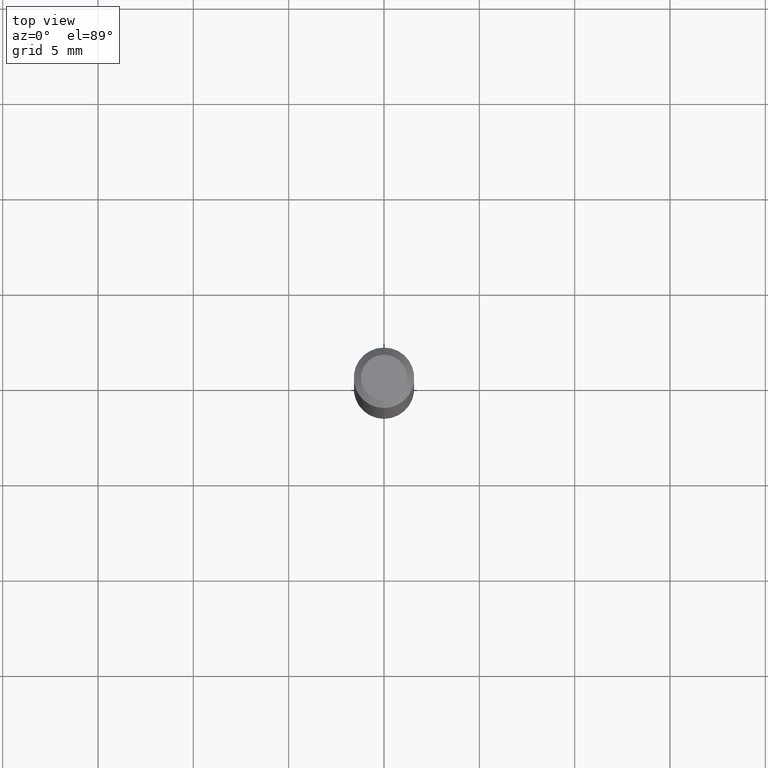
[diagram: clean part render]
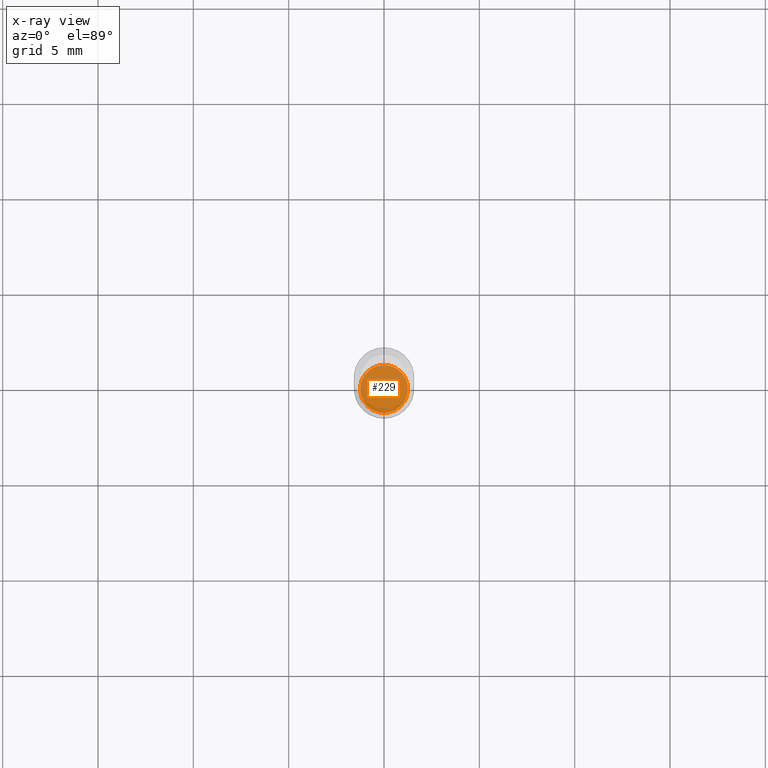
[diagram: x-ray — body ghosted, one internal face saturated and labeled with its STEP entity id]
A machine part, top view, then the same camera in x-ray: the body is ghosted and one INTERNAL B-rep face — a face not visible from any outside direction — is saturated and labeled: STEP entity #229.
In plain terms, the highlighted planar face has unit normal (-0, 0, 1).
Its self-contained STEP definition (entity closure, byte-faithful):
#104 = AXIS2_PLACEMENT_3D ( 'NONE', #414, #405, #512 ) ;
#105 = VERTEX_POINT ( 'NONE', #349 ) ;
#139 = CARTESIAN_POINT ( 'NONE',  ( 3.301334156351195229E-29, -4.713569594434094720E-15, -1.350000000000000089 ) ) ;
#158 = DIRECTION ( 'NONE',  ( -6.982962677686265922E-15, -1.000000000000000000, 3.491533032914144486E-15 ) ) ;
#171 = DIRECTION ( 'NONE',  ( -6.982962677686265922E-15, -1.000000000000000000, 5.518884835685384614E-15 ) ) ;
#174 = AXIS2_PLACEMENT_3D ( 'NONE', #139, #339, #171 ) ;
#196 = CIRCLE ( 'NONE', #104, 0.04949999999999996070 ) ;
#199 = FACE_OUTER_BOUND ( 'NONE', #298, .T. ) ;
#209 = EDGE_CURVE ( 'NONE', #105, #287, #196, .T. ) ;
#229 = ADVANCED_FACE ( 'NONE', ( #199 ), #362, .F. ) ;
#243 = CARTESIAN_POINT ( 'NONE',  ( 3.301334156351195229E-29, -4.713569594434094720E-15, -1.350000000000000089 ) ) ;
#265 = ORIENTED_EDGE ( 'NONE', *, *, #209, .F. ) ;
#287 = VERTEX_POINT ( 'NONE', #429 ) ;
#298 = EDGE_LOOP ( 'NONE', ( #265, #459 ) ) ;
#339 = DIRECTION ( 'NONE',  ( -2.445432708408292326E-29, 3.491533032914144486E-15, 1.000000000000000000 ) ) ;
#341 = CIRCLE ( 'NONE', #174, 0.04949999999999996070 ) ;
#349 = CARTESIAN_POINT ( 'NONE',  ( -3.456566525454369004E-16, -0.04950000000000467221, -1.349999999999999867 ) ) ;
#359 = EDGE_CURVE ( 'NONE', #287, #105, #341, .T. ) ;
#362 = PLANE ( 'NONE',  #399 ) ;
#399 = AXIS2_PLACEMENT_3D ( 'NONE', #243, #516, #158 ) ;
#405 = DIRECTION ( 'NONE',  ( -2.445432708408292326E-29, 3.491533032914144486E-15, 1.000000000000000000 ) ) ;
#414 = CARTESIAN_POINT ( 'NONE',  ( 3.301334156351195229E-29, -4.713569594434094720E-15, -1.350000000000000089 ) ) ;
#429 = CARTESIAN_POINT ( 'NONE',  ( 3.534950110406824997E-16, 0.04949999999999524919, -1.350000000000000311 ) ) ;
#459 = ORIENTED_EDGE ( 'NONE', *, *, #359, .F. ) ;
#512 = DIRECTION ( 'NONE',  ( -6.982962677686265922E-15, -1.000000000000000000, 5.518884835685384614E-15 ) ) ;
#516 = DIRECTION ( 'NONE',  ( -2.445432708408292046E-29, 3.491533032914144486E-15, 1.000000000000000000 ) ) ;